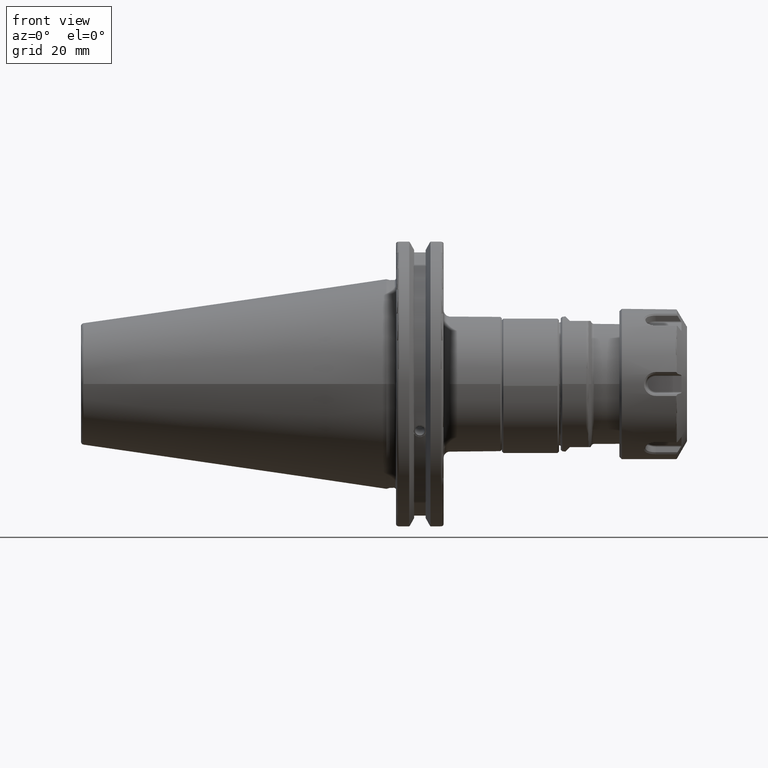
[diagram: clean part render]
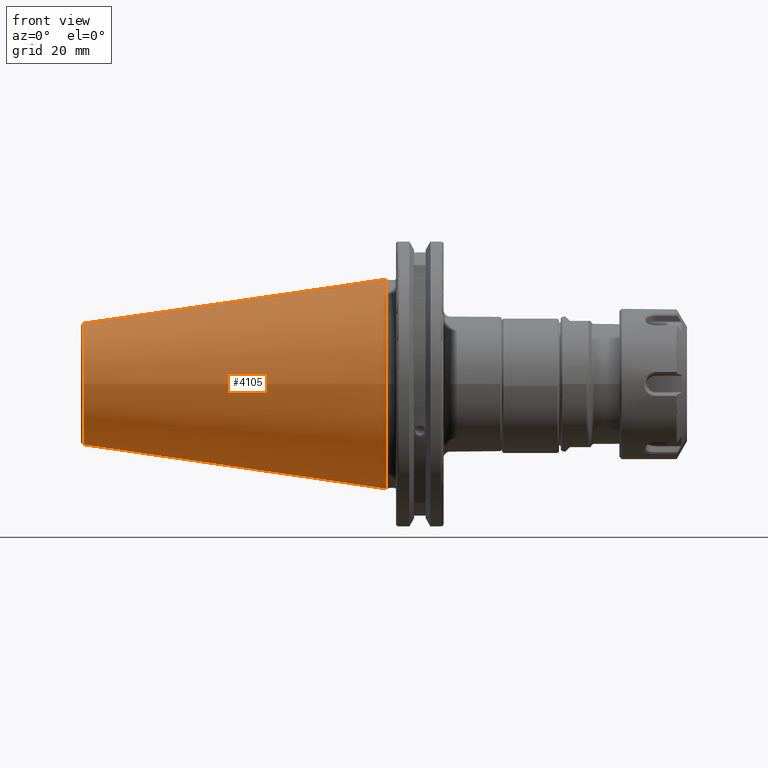
[diagram: same view with one face highlighted and labeled with its STEP entity id]
A machine part, front view. The second image highlights one B-rep face of the part: STEP entity #4105.
In plain terms, the highlighted conical surface has half-angle 8.297 deg.
Its self-contained STEP definition (entity closure, byte-faithful):
#515=FACE_OUTER_BOUND('',#799,.T.);
#799=EDGE_LOOP('',(#3133,#3134,#3135,#3136,#3137));
#1089=LINE('',#7089,#1331);
#1331=VECTOR('',#5327,27.5166666666666);
#1563=CIRCLE('',#4561,20.233121911427);
#1564=CIRCLE('',#4562,20.233121911427);
#1568=CIRCLE('',#4568,34.925);
#1883=VERTEX_POINT('',#7076);
#1884=VERTEX_POINT('',#7077);
#1887=VERTEX_POINT('',#7087);
#2348=EDGE_CURVE('',#1883,#1884,#1563,.T.);
#2349=EDGE_CURVE('',#1884,#1883,#1564,.T.);
#2353=EDGE_CURVE('',#1887,#1887,#1568,.T.);
#2354=EDGE_CURVE('',#1887,#1884,#1089,.T.);
#3133=ORIENTED_EDGE('',*,*,#2353,.F.);
#3134=ORIENTED_EDGE('',*,*,#2354,.T.);
#3135=ORIENTED_EDGE('',*,*,#2348,.F.);
#3136=ORIENTED_EDGE('',*,*,#2349,.F.);
#3137=ORIENTED_EDGE('',*,*,#2354,.F.);
#3991=CONICAL_SURFACE('',#4567,27.5166666666666,0.14481249823894);
#4105=ADVANCED_FACE('',(#515),#3991,.T.);
#4561=AXIS2_PLACEMENT_3D('',#7078,#5311,#5312);
#4562=AXIS2_PLACEMENT_3D('',#7079,#5313,#5314);
#4567=AXIS2_PLACEMENT_3D('',#7086,#5323,#5324);
#4568=AXIS2_PLACEMENT_3D('',#7088,#5325,#5326);
#5311=DIRECTION('center_axis',(-1.,0.,0.));
#5312=DIRECTION('ref_axis',(0.,-1.,3.06161699786838E-17));
#5313=DIRECTION('center_axis',(-1.,0.,0.));
#5314=DIRECTION('ref_axis',(0.,-1.,3.06161699786838E-17));
#5323=DIRECTION('center_axis',(1.,0.,0.));
#5324=DIRECTION('ref_axis',(0.,1.,0.));
#5325=DIRECTION('center_axis',(1.,0.,0.));
#5326=DIRECTION('ref_axis',(0.,0.,-1.));
#5327=DIRECTION('',(-0.989532981063281,0.144306893071729,1.76724974695192E-17));
#7076=CARTESIAN_POINT('',(-100.744306893072,-2.47784279855872E-15,20.233121911427));
#7077=CARTESIAN_POINT('',(-100.744306893072,-20.233121911427,-2.47784279855872E-15));
#7078=CARTESIAN_POINT('Origin',(-100.744306893072,0.,-3.09730349819841E-15));
#7079=CARTESIAN_POINT('Origin',(-100.744306893072,0.,-3.09730349819841E-15));
#7086=CARTESIAN_POINT('Origin',(-50.8,0.,0.));
#7087=CARTESIAN_POINT('',(-8.88178419700125E-15,-34.925,-4.27707894602213E-15));
#7088=CARTESIAN_POINT('Origin',(0.,0.,0.));
#7089=CARTESIAN_POINT('',(-50.8,-27.5166666666666,-3.3698197756538E-15));